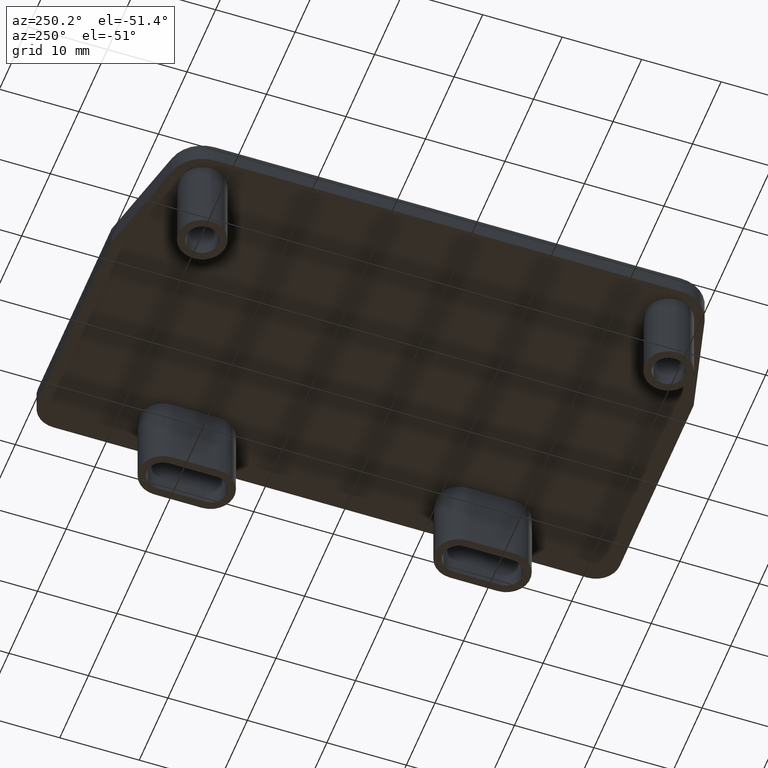
[diagram: clean part render]
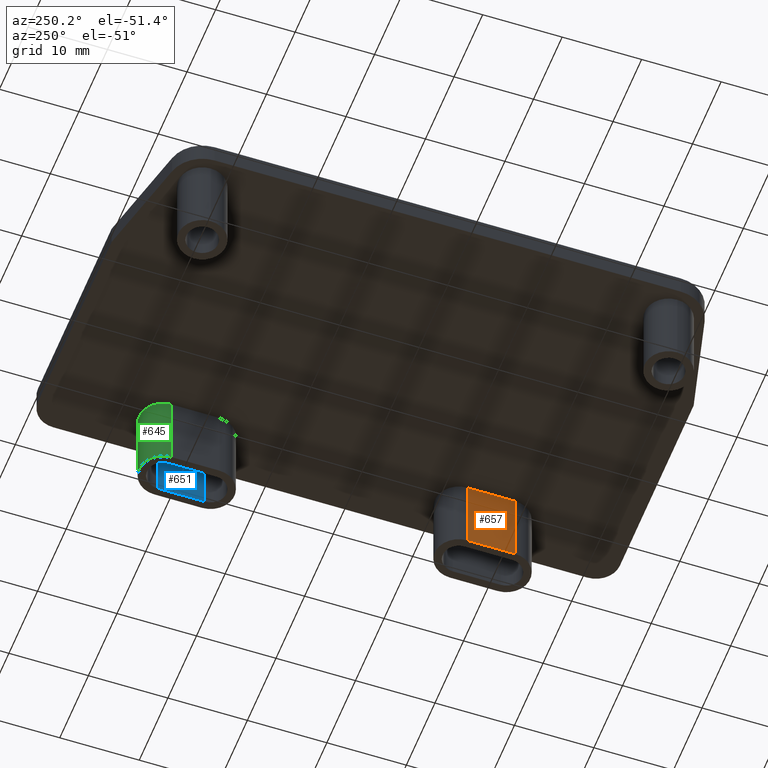
[diagram: same view with three faces highlighted in distinct colors, each labeled with its STEP entity id]
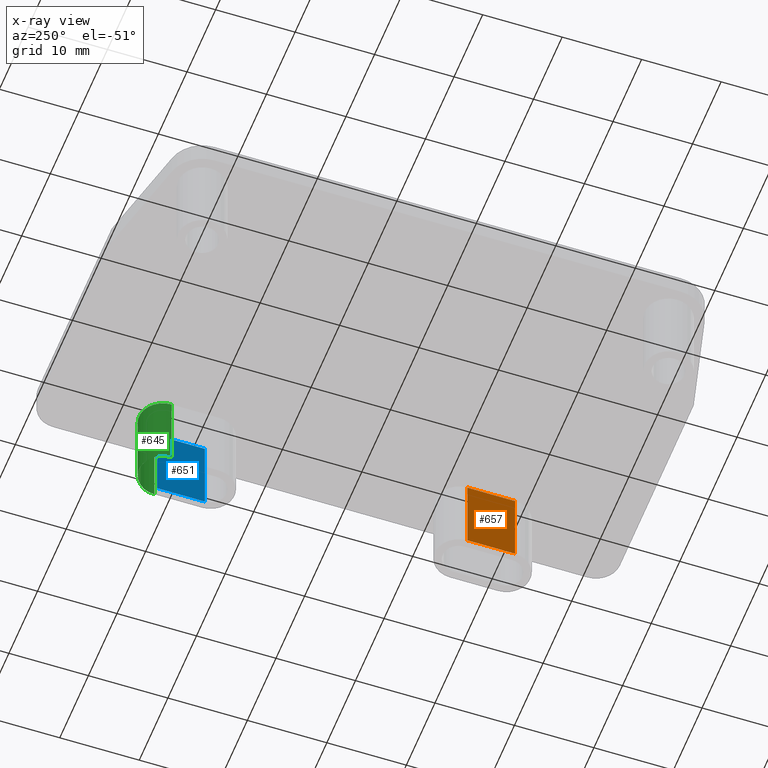
[diagram: x-ray of the same camera — body ghosted, the three highlighted faces saturated]
A machine part, auxiliary view with three faces highlighted in distinct colors.
The next image is the same camera in x-ray (body ghosted, the three faces saturated) — at least one of them is partly hidden behind the body in this view.
Their STEP definitions:

[orange] entity #657 — the highlighted planar face has unit normal (-1, 0, 0).
#99=FACE_OUTER_BOUND('',#144,.T.);
#144=EDGE_LOOP('',(#557,#558,#559,#560));
#184=LINE('',#1045,#242);
#201=LINE('',#1110,#259);
#205=LINE('',#1120,#263);
#206=LINE('',#1123,#264);
#242=VECTOR('',#837,5.99999999997453);
#259=VECTOR('',#908,10.);
#263=VECTOR('',#918,10.);
#264=VECTOR('',#923,5.99999999997453);
#300=VERTEX_POINT('',#1039);
#302=VERTEX_POINT('',#1043);
#323=VERTEX_POINT('',#1109);
#326=VERTEX_POINT('',#1119);
#372=EDGE_CURVE('',#300,#302,#184,.T.);
#401=EDGE_CURVE('',#302,#323,#201,.T.);
#406=EDGE_CURVE('',#300,#326,#205,.T.);
#408=EDGE_CURVE('',#326,#323,#206,.T.);
#557=ORIENTED_EDGE('',*,*,#408,.F.);
#558=ORIENTED_EDGE('',*,*,#406,.F.);
#559=ORIENTED_EDGE('',*,*,#372,.T.);
#560=ORIENTED_EDGE('',*,*,#401,.T.);
#623=PLANE('',#746);
#657=ADVANCED_FACE('',(#99),#623,.T.);
#746=AXIS2_PLACEMENT_3D('',#1122,#921,#922);
#837=DIRECTION('',(0.,1.,0.));
#908=DIRECTION('',(0.,0.,-1.));
#918=DIRECTION('',(0.,0.,-1.));
#921=DIRECTION('center_axis',(-1.,0.,0.));
#922=DIRECTION('ref_axis',(0.,0.,1.));
#923=DIRECTION('',(0.,1.,0.));
#1039=CARTESIAN_POINT('',(36.4999999998508,-21.6059999999125,0.));
#1043=CARTESIAN_POINT('',(36.4999999998508,-15.6059999999379,0.));
#1045=CARTESIAN_POINT('',(36.4999999998508,-21.6059999999125,0.));
#1109=CARTESIAN_POINT('',(36.4999999998508,-15.6059999999379,-10.));
#1110=CARTESIAN_POINT('',(36.4999999998508,-15.6059999999379,0.));
#1119=CARTESIAN_POINT('',(36.4999999998508,-21.6059999999125,-10.));
#1120=CARTESIAN_POINT('',(36.4999999998508,-21.6059999999125,0.));
#1122=CARTESIAN_POINT('Origin',(36.4999999998508,-21.6059999999125,0.));
#1123=CARTESIAN_POINT('',(36.4999999998508,-21.6059999999125,-10.));

[blue] entity #651 — the highlighted planar face has unit normal (-1, 0, 0).
#93=FACE_OUTER_BOUND('',#137,.T.);
#137=EDGE_LOOP('',(#529,#530,#531,#532));
#188=LINE('',#1072,#246);
#198=LINE('',#1099,#256);
#199=LINE('',#1103,#257);
#200=LINE('',#1104,#258);
#246=VECTOR('',#863,5.99999999997453);
#256=VECTOR('',#893,10.);
#257=VECTOR('',#898,10.);
#258=VECTOR('',#899,5.99999999997453);
#313=VERTEX_POINT('',#1069);
#314=VERTEX_POINT('',#1071);
#321=VERTEX_POINT('',#1098);
#322=VERTEX_POINT('',#1102);
#383=EDGE_CURVE('',#314,#313,#188,.T.);
#396=EDGE_CURVE('',#314,#321,#198,.T.);
#398=EDGE_CURVE('',#313,#322,#199,.T.);
#399=EDGE_CURVE('',#321,#322,#200,.T.);
#529=ORIENTED_EDGE('',*,*,#396,.F.);
#530=ORIENTED_EDGE('',*,*,#383,.T.);
#531=ORIENTED_EDGE('',*,*,#398,.T.);
#532=ORIENTED_EDGE('',*,*,#399,.F.);
#620=PLANE('',#737);
#651=ADVANCED_FACE('',(#93),#620,.T.);
#737=AXIS2_PLACEMENT_3D('',#1101,#896,#897);
#863=DIRECTION('',(0.,1.,0.));
#893=DIRECTION('',(0.,0.,-1.));
#896=DIRECTION('center_axis',(-1.,0.,0.));
#897=DIRECTION('ref_axis',(0.,0.,1.));
#898=DIRECTION('',(0.,0.,-1.));
#899=DIRECTION('',(0.,1.,0.));
#1069=CARTESIAN_POINT('',(41.4999999998345,21.6059999999125,0.));
#1071=CARTESIAN_POINT('',(41.4999999998345,15.6059999999379,0.));
#1072=CARTESIAN_POINT('',(41.4999999998345,15.6059999999379,0.));
#1098=CARTESIAN_POINT('',(41.4999999998345,15.6059999999379,-10.));
#1099=CARTESIAN_POINT('',(41.4999999998345,15.6059999999379,0.));
#1101=CARTESIAN_POINT('Origin',(41.4999999998345,15.6059999999379,0.));
#1102=CARTESIAN_POINT('',(41.4999999998345,21.6059999999125,-10.));
#1103=CARTESIAN_POINT('',(41.4999999998345,21.6059999999125,0.));
#1104=CARTESIAN_POINT('',(41.4999999998345,15.6059999999379,-10.));

[green] entity #645 — the highlighted cylindrical surface (edge-blend (fillet) strip) has radius 3 mm, axis along (0, 0, -1).
#32=CIRCLE('',#712,2.99999999999182);
#43=CIRCLE('',#729,2.99999999999182);
#59=CYLINDRICAL_SURFACE('',#728,2.99999999999182);
#87=FACE_OUTER_BOUND('',#131,.T.);
#131=EDGE_LOOP('',(#505,#506,#507,#508));
#189=LINE('',#1077,#247);
#190=LINE('',#1079,#248);
#247=VECTOR('',#870,10.);
#248=VECTOR('',#871,10.);
#297=VERTEX_POINT('',#1033);
#298=VERTEX_POINT('',#1035);
#315=VERTEX_POINT('',#1076);
#316=VERTEX_POINT('',#1078);
#367=EDGE_CURVE('',#298,#297,#32,.T.);
#385=EDGE_CURVE('',#298,#315,#189,.T.);
#386=EDGE_CURVE('',#297,#316,#190,.T.);
#387=EDGE_CURVE('',#315,#316,#43,.T.);
#505=ORIENTED_EDGE('',*,*,#385,.F.);
#506=ORIENTED_EDGE('',*,*,#367,.T.);
#507=ORIENTED_EDGE('',*,*,#386,.T.);
#508=ORIENTED_EDGE('',*,*,#387,.F.);
#645=ADVANCED_FACE('',(#87),#59,.T.);
#712=AXIS2_PLACEMENT_3D('',#1036,#829,#830);
#728=AXIS2_PLACEMENT_3D('',#1075,#868,#869);
#729=AXIS2_PLACEMENT_3D('',#1080,#872,#873);
#829=DIRECTION('center_axis',(0.,0.,-1.));
#830=DIRECTION('ref_axis',(1.,0.,0.));
#868=DIRECTION('center_axis',(0.,0.,-1.));
#869=DIRECTION('ref_axis',(-1.,0.,0.));
#870=DIRECTION('',(0.,0.,-1.));
#871=DIRECTION('',(0.,0.,-1.));
#872=DIRECTION('center_axis',(0.,0.,-1.));
#873=DIRECTION('ref_axis',(1.,0.,0.));
#1033=CARTESIAN_POINT('',(42.4999999998345,21.6059999999125,0.));
#1035=CARTESIAN_POINT('',(36.499999999849,21.6059999999125,0.));
#1036=CARTESIAN_POINT('Origin',(39.4999999998418,21.6059999999125,0.));
#1075=CARTESIAN_POINT('Origin',(39.4999999998418,21.6059999999125,0.));
#1076=CARTESIAN_POINT('',(36.499999999849,21.6059999999125,-10.));
#1077=CARTESIAN_POINT('',(36.499999999849,21.6059999999125,0.));
#1078=CARTESIAN_POINT('',(42.4999999998345,21.6059999999125,-10.));
#1079=CARTESIAN_POINT('',(42.4999999998345,21.6059999999125,0.));
#1080=CARTESIAN_POINT('Origin',(39.4999999998418,21.6059999999125,-10.));